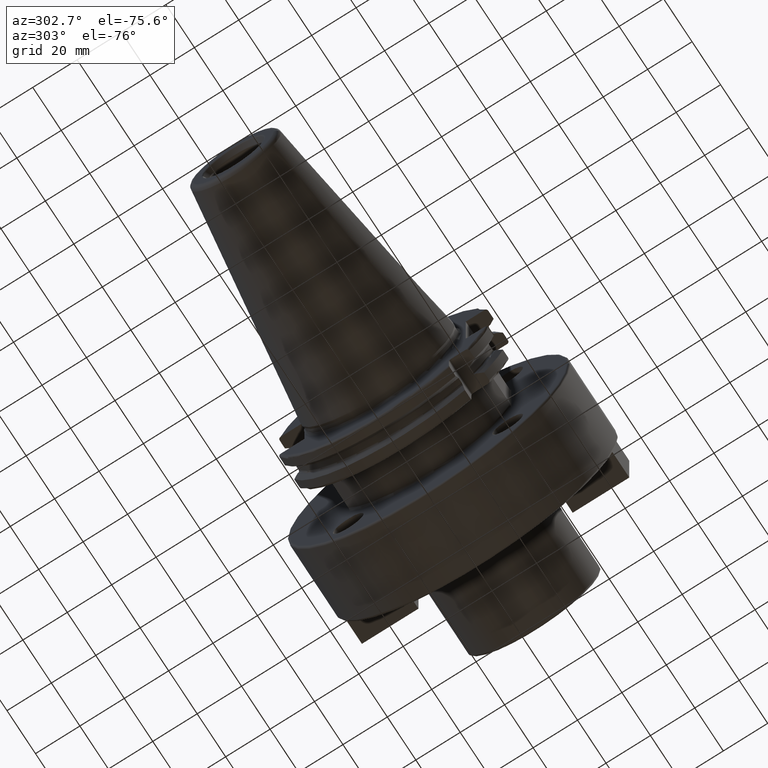
[diagram: clean part render]
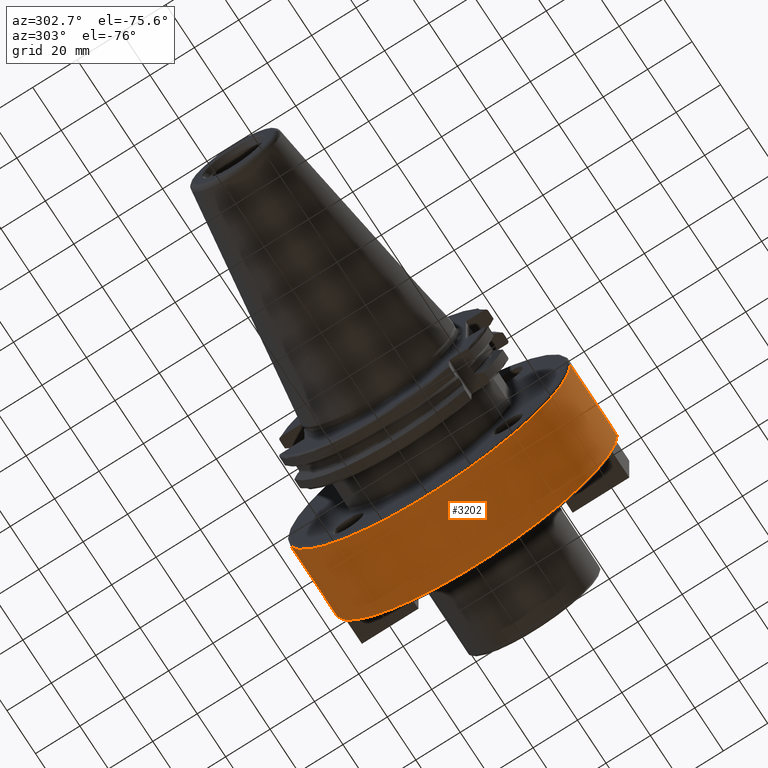
[diagram: same view with one face highlighted and labeled with its STEP entity id]
A machine part, auxiliary view. The second image highlights one B-rep face of the part: STEP entity #3202.
In plain terms, the highlighted cylindrical surface (partial cylindrical patch) has radius 63.5 mm, axis along (1, 0, 0).
Its self-contained STEP definition (entity closure, byte-faithful):
#1158=CARTESIAN_POINT('',(3.605E1,0.E0,0.E0));
#1159=DIRECTION('',(1.E0,0.E0,0.E0));
#1160=DIRECTION('',(0.E0,-1.E0,0.E0));
#1161=AXIS2_PLACEMENT_3D('',#1158,#1159,#1160);
#1163=DIRECTION('',(-1.E0,0.E0,0.E0));
#1164=VECTOR('',#1163,3.295E1);
#1165=CARTESIAN_POINT('',(6.9E1,-6.35E1,1.623941634254E-13));
#1166=LINE('',#1165,#1164);
#1167=CARTESIAN_POINT('',(6.9E1,0.E0,0.E0));
#1168=DIRECTION('',(-1.E0,0.E0,0.E0));
#1169=DIRECTION('',(0.E0,1.E0,0.E0));
#1170=AXIS2_PLACEMENT_3D('',#1167,#1168,#1169);
#1172=DIRECTION('',(-1.E0,0.E0,0.E0));
#1173=VECTOR('',#1172,3.295E1);
#1174=CARTESIAN_POINT('',(6.9E1,6.35E1,-1.784311837379E-13));
#1175=LINE('',#1174,#1173);
#1948=CARTESIAN_POINT('',(6.9E1,6.35E1,0.E0));
#1949=CARTESIAN_POINT('',(6.9E1,-6.35E1,-1.555301434917E-14));
#1950=VERTEX_POINT('',#1948);
#1951=VERTEX_POINT('',#1949);
#2046=CARTESIAN_POINT('',(3.605E1,-6.35E1,-1.555301434917E-14));
#2047=CARTESIAN_POINT('',(3.605E1,6.35E1,0.E0));
#2048=VERTEX_POINT('',#2046);
#2049=VERTEX_POINT('',#2047);
#3188=CARTESIAN_POINT('',(1.45025E1,0.E0,0.E0));
#3189=DIRECTION('',(1.E0,0.E0,0.E0));
#3190=DIRECTION('',(0.E0,-1.E0,0.E0));
#3191=AXIS2_PLACEMENT_3D('',#3188,#3189,#3190);
#3192=CYLINDRICAL_SURFACE('',#3191,6.35E1);
#3193=ORIENTED_EDGE('',*,*,#3178,.F.);
#3195=ORIENTED_EDGE('',*,*,#3194,.F.);
#3197=ORIENTED_EDGE('',*,*,#3196,.F.);
#3199=ORIENTED_EDGE('',*,*,#3198,.T.);
#3200=EDGE_LOOP('',(#3193,#3195,#3197,#3199));
#3201=FACE_OUTER_BOUND('',#3200,.F.);
#3202=ADVANCED_FACE('',(#3201),#3192,.T.);
#1162=CIRCLE('',#1161,6.35E1);
#1171=CIRCLE('',#1170,6.35E1);
#3178=EDGE_CURVE('',#2048,#2049,#1162,.T.);
#3194=EDGE_CURVE('',#1951,#2048,#1166,.T.);
#3196=EDGE_CURVE('',#1950,#1951,#1171,.T.);
#3198=EDGE_CURVE('',#1950,#2049,#1175,.T.);